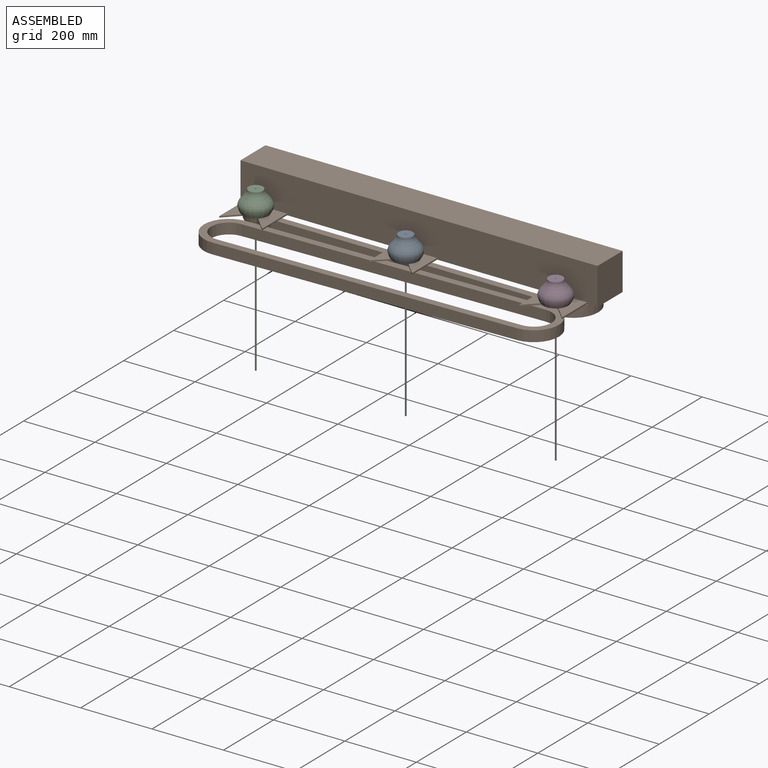
[diagram: assembled view]
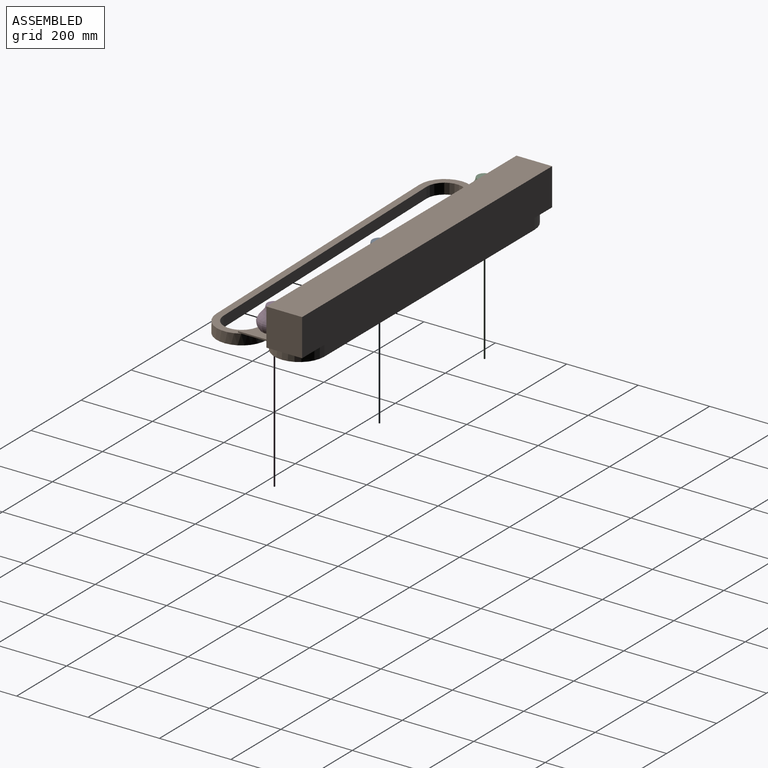
[diagram: assembled view, second angle]
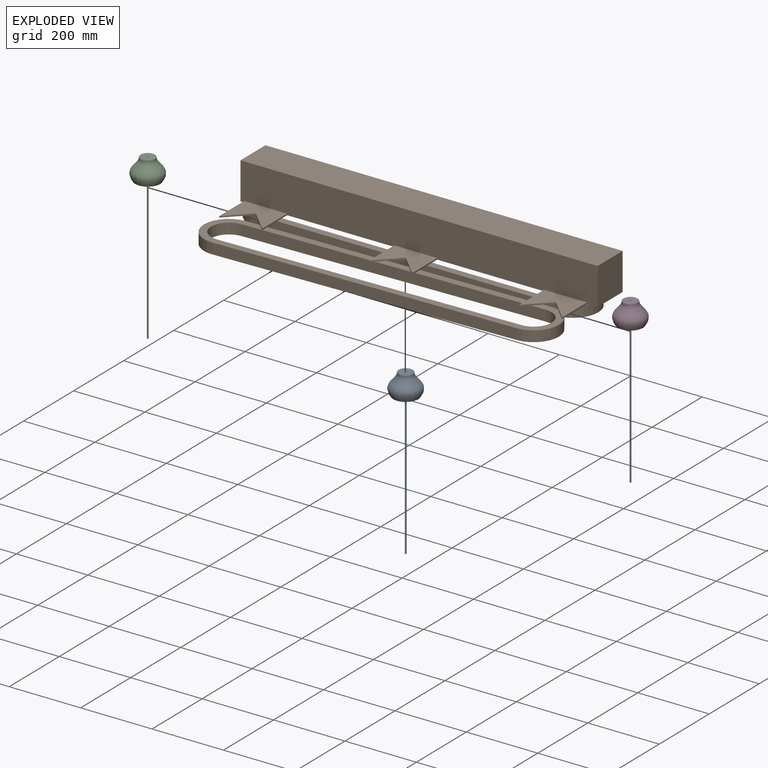
[diagram: exploded view]
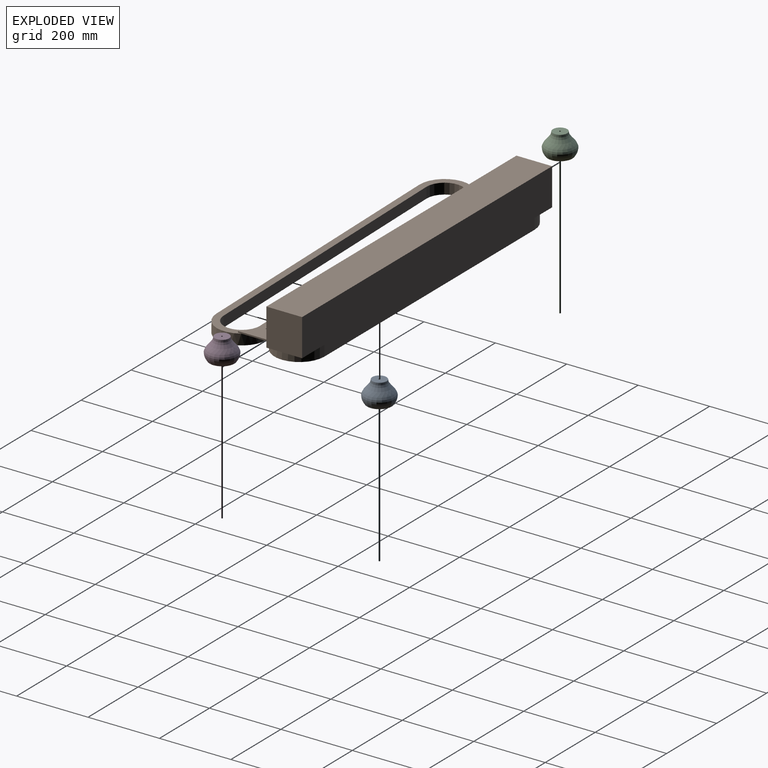
[diagram: exploded view, second angle]
ASSEMBLY  parts=4 mates=3
PART A: 8 faces, bbox 84.5x84.5x460 mm
  f0: plane 40x40mm, normal (0,0,1), area 1241.6mm2, adj f1,f7
  f1: cylinder r=2.19mm len=57.85mm, axis (0,0,-1), area 796.2mm2, adj f0,f2
  f2: cone r=2.19mm half-angle=45.6deg, axis (0,0,1), area 21.1mm2, adj f1
  f3: plane 4x4mm, normal (0,0,-1), area 12.6mm2, adj f4
  f4: cylinder r=2mm len=397.37mm, axis (0,0,-1), area 4993.5mm2, adj f3,f5
  f5: cone r=4.69mm half-angle=45.6deg, axis (0,0,1), area 79mm2, adj f4,f6
  f6: plane 69.37x69.37mm, normal (0,0,-1), area 3710.8mm2, adj f5,f7
  f7: revolved ~84.46x84.46mm, area 14444.6mm2, adj f0,f6
PART B: 58 faces, bbox 1000x320x134 mm
  f0: plane 60x31.43mm, normal (0,0,-1), area 1382mm2, adj f26,f27,f40,f51
  f1: plane 60x39.08mm, normal (0,0,-1), area 1575.9mm2, adj f24,f25,f40,f51
  f2: plane 60x29.31mm, normal (0,0,-1), area 1317.7mm2, adj f28,f29,f40,f51
  f3: plane 60x21.43mm, normal (0,0,-1), area 1038.1mm2, adj f30,f31,f40,f51
  f4: plane 100x70.77mm, normal (0,0,-1), area 1194.4mm2, adj f12,f14,f15,f41
  f5: plane 93.94x60mm, normal (0,0,-1), area 2395.6mm2, adj f22,f23,f41
  f6: plane 8.77x8.77mm, normal (0,0,-1), area 37.5mm2, adj f26,f27,f48
  f7: plane 100x89.23mm, normal (0,0,-1), area 3041.1mm2, adj f12,f13,f14,f39
  f8: plane 1.42x1.38mm, normal (0,0,-1), area 1mm2, adj f24,f25,f48
  f9: plane 84.87x60mm, normal (0,0,-1), area 2110.4mm2, adj f20,f21,f39,f52
  f10: plane 940x100mm, normal (0,0,-1), area 79854mm2, adj f12,f25,f26,f29,f30,f36,f37,f38
  f11: plane 11.42x11.15mm, normal (0,0,-1), area 63.7mm2, adj f28,f29,f48
  f12: plane 1000x104mm, normal (0,-1,0), area 102560mm2, adj f4,f7,f10,f13,f15,f16,f17,f18
  f13: plane 104x100mm, normal (1,0,0), area 10400mm2, adj f7,f12,f14,f16
  f14: plane 1000x134mm, normal (0,1,0), area 129200mm2, adj f4,f7,f13,f15,f16,f39,f41,f43
  f15: plane 104x100mm, normal (-1,0,0), area 10400mm2, adj f4,f12,f14,f16
  f16: plane 1000x100mm, normal (0,0,1), area 100000mm2, adj f12,f13,f14,f15
  f17: plane 120x100mm, normal (0,0,1), area 8400mm2, adj f12,f22,f23,f24,f25
  f18: plane 120x100mm, normal (0,0,1), area 8400mm2, adj f12,f26,f27,f28,f29
  f19: plane 120x100mm, normal (0,0,1), area 8400mm2, adj f12,f20,f21,f30,f31
  f20: plane 60x60mm, normal (-0.71,-0.71,0), area 339.4mm2, adj f9,f19,f21,f31,f46
  f21: plane 100x4mm, normal (1,0,0), area 400mm2, adj f9,f12,f19,f20,f44,f46
  f22: plane 100x4mm, normal (-1,0,0), area 400mm2, adj f5,f12,f17,f23,f35
  f23: plane 60x60mm, normal (0.71,-0.71,0), area 339.4mm2, adj f5,f17,f22,f24
  f24: plane 60x60mm, normal (-0.71,-0.71,0), area 339.4mm2, adj f1,f8,f17,f23,f25,f46
  f25: plane 100x4mm, normal (1,0,0), area 400mm2, adj f1,f8,f10,f12,f17,f24,f34,f45
  f26: plane 100x4mm, normal (-1,0,0), area 400mm2, adj f0,f6,f10,f12,f18,f27,f34,f45
  f27: plane 60x60mm, normal (0.71,-0.71,0), area 339.4mm2, adj f0,f6,f18,f26,f28,f47
  f28: plane 60x60mm, normal (-0.71,-0.71,0), area 339.4mm2, adj f2,f11,f18,f27,f29,f47
  f29: plane 100x4mm, normal (1,0,0), area 400mm2, adj f2,f10,f11,f12,f18,f28,f33,f57
  f30: plane 100x4mm, normal (-1,0,0), area 400mm2, adj f3,f10,f12,f19,f31,f32,f33,f57
  f31: plane 60x60mm, normal (0.71,-0.71,0), area 339.4mm2, adj f3,f19,f20,f30,f32,f46
  f32: plane 19.02x19.02mm, normal (0,0,-1), area 176.5mm2, adj f30,f31,f48
  f33: plane 300x20mm, normal (0,0,1), area 6000mm2, adj f29,f30,f37,f40
  f34: plane 300x20mm, normal (0,0,1), area 6000mm2, adj f25,f26,f37,f40
  f35: plane 6.06x3.25mm, normal (0,0,1), area 10.2mm2, adj f12,f22,f41
  f36: cylinder r=50mm len=100mm, axis (0,0,1), area 4712.4mm2, adj f10,f37,f42,f43
  f37: plane 840x30mm, normal (0,1,0), area 25200mm2, adj f10,f33,f34,f36,f38,f43
  f38: cylinder r=50mm len=100mm, axis (0,0,1), area 4712.4mm2, adj f10,f37,f42,f43
  f39: cylinder r=70mm len=140mm, axis (0,0,1), area 6597.3mm2, adj f7,f9,f14,f40,f43,f44
  f40: plane 840x30mm, normal (0,-1,0), area 25200mm2, adj f0,f1,f2,f3,f33,f34,f39,f41
  f41: cylinder r=70mm len=140mm, axis (0,0,1), area 6597.3mm2, adj f4,f5,f14,f35,f40,f43
  f42: plane 840x30mm, normal (0,-1,0), area 25200mm2, adj f10,f36,f38,f43
  f43: plane 980x140mm, normal (0,0,-1), area 41139.8mm2, adj f14,f36,f37,f38,f39,f40,f41,f42
  f44: plane 6.06x3.25mm, normal (0,0,1), area 10.2mm2, adj f12,f21,f39
  f45: plane 300x27.15mm, normal (0,0,1), area 6001.7mm2, adj f25,f26,f48,f51
  f46: plane 979.76x160mm, normal (0,0,1), area 25642mm2, adj f20,f21,f24,f31,f48,f49,f50,f51
  f47: plane 100.08x21.92mm, normal (0,0,1), area 1601.6mm2, adj f27,f28,f48,f51
  f48: plane 839.76x30mm, normal (0.02,-1,0), area 25200mm2, adj f6,f8,f11,f32,f45,f46,f47,f49
  f49: cylinder r=50mm len=99.99mm, axis (0,0,1), area 4712.4mm2, adj f46,f48,f50,f56
  f50: plane 839.76x30mm, normal (-0.02,1,0), area 25200mm2, adj f46,f49,f55,f56
  f51: plane 839.76x30mm, normal (-0.02,1,0), area 25200mm2, adj f0,f1,f2,f3,f45,f46,f47,f52
  f52: cylinder r=70mm len=139.98mm, axis (0,0,1), area 6597.3mm2, adj f9,f46,f51,f53,f56
  f53: plane 839.76x30mm, normal (0.02,-1,0), area 25200mm2, adj f46,f52,f54,f56
  f54: cylinder r=70mm len=139.98mm, axis (0,0,1), area 6597.3mm2, adj f46,f51,f53,f56
  f55: cylinder r=50mm len=99.99mm, axis (0,0,1), area 4712.4mm2, adj f46,f48,f50,f56
  f56: plane 979.76x160mm, normal (0,0,-1), area 41139.8mm2, adj f48,f49,f50,f51,f52,f53,f54,f55
  f57: plane 300x27.15mm, normal (0,0,1), area 6001.7mm2, adj f29,f30,f48,f51
PART C: same geometry as A
PART D: same geometry as A
PLACE A t=(152.38,82.48,-79.24)mm
PLACE B t=(-338.39,122.48,-79.24)mm
PLACE C t=(-267.62,82.48,-76.61)mm
PLACE D t=(572.38,82.48,-79.24)mm
MATE fastened C.f1 <-> B.f17  axis (0,0,-1) through (-267.62,82.48,-79.24)mm
MATE fastened D.f1 <-> B.f19  axis (0,0,-1) through (572.38,82.48,-79.24)mm
MATE fastened A.f1 <-> B.f18  axis (0,0,-1) through (152.38,82.48,-79.24)mm
